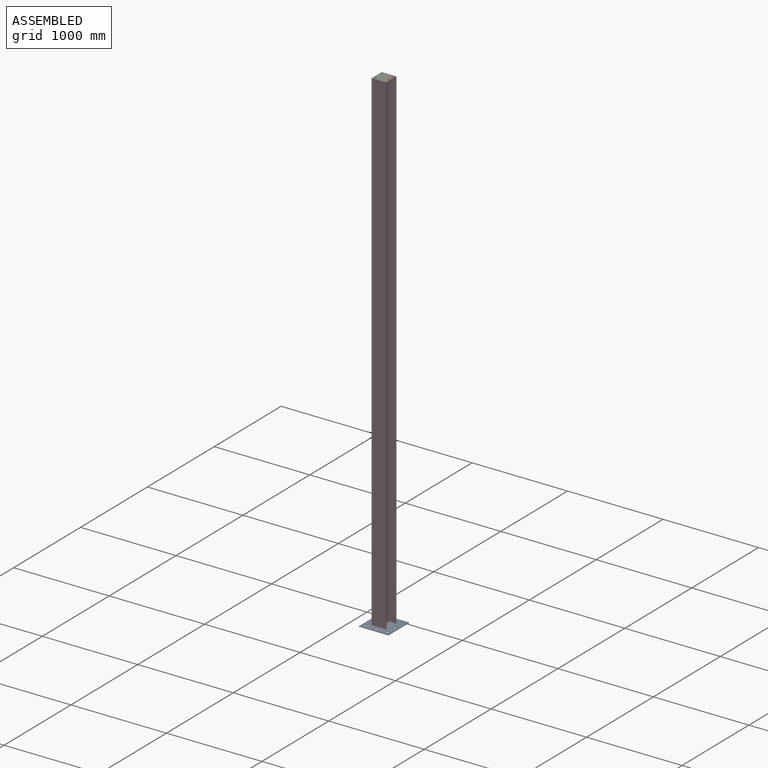
[diagram: assembled view]
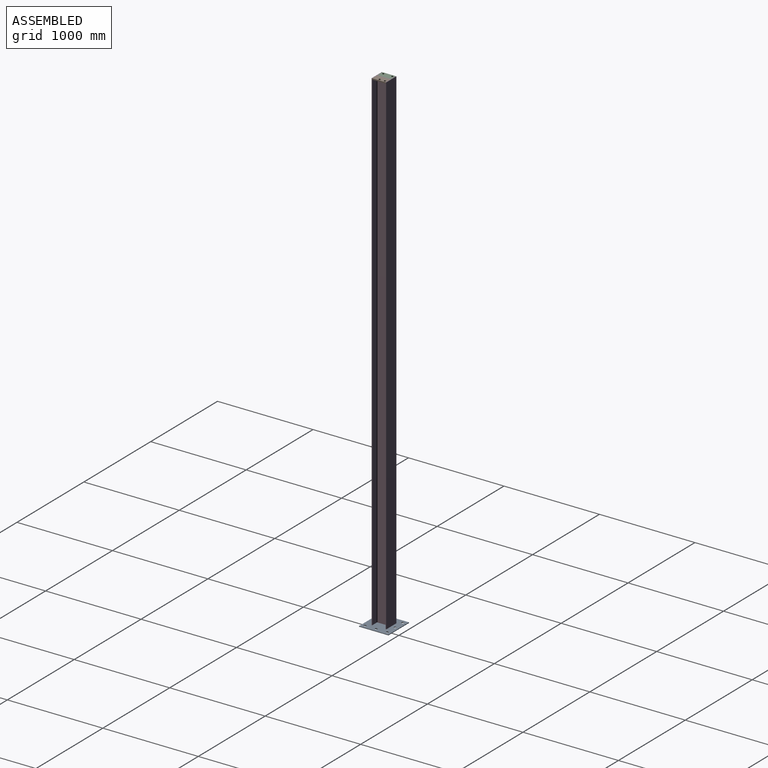
[diagram: assembled view, second angle]
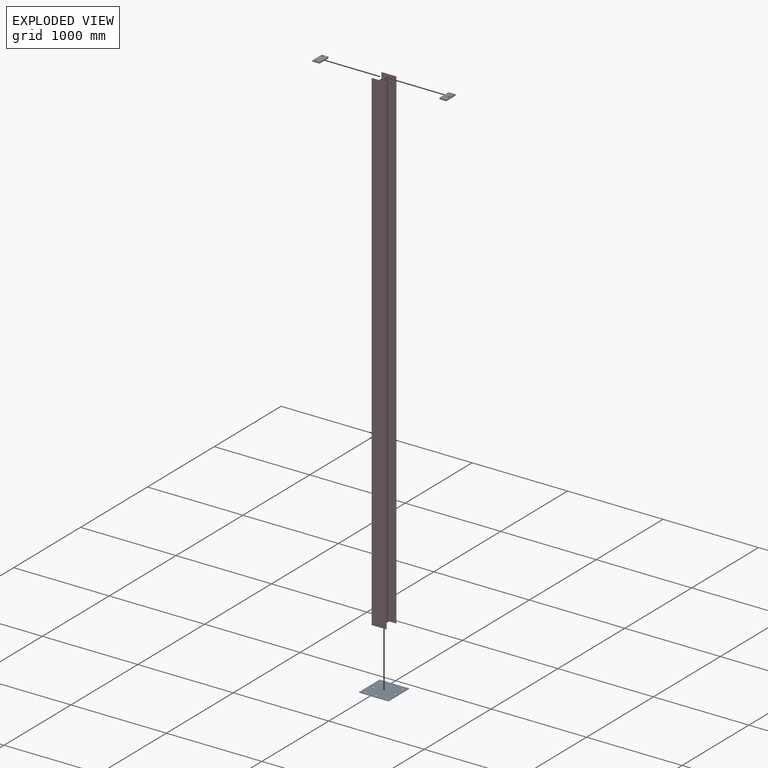
[diagram: exploded view]
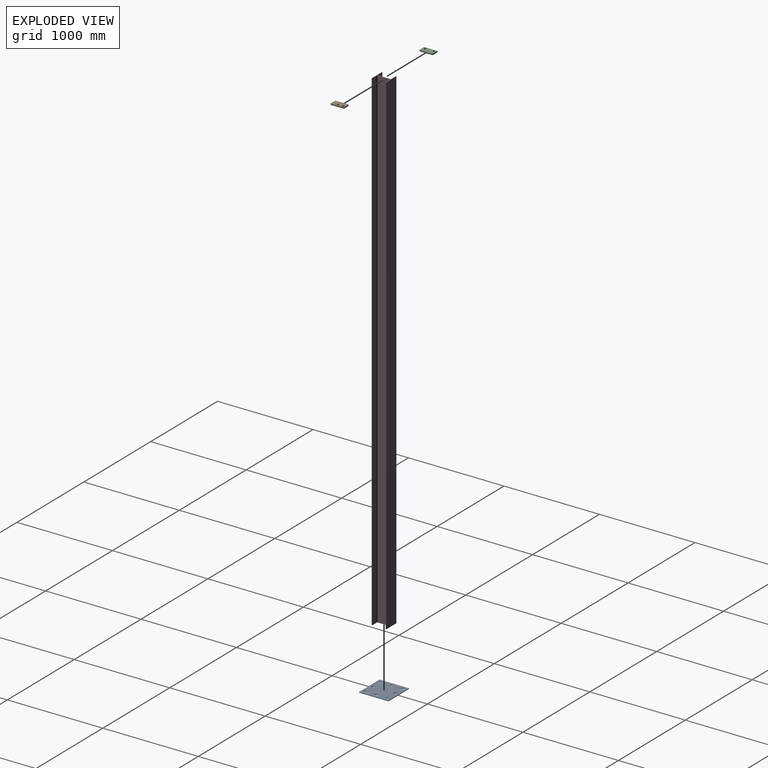
[diagram: exploded view, second angle]
ASSEMBLY  parts=4 mates=3
PART A: 14 faces, bbox 308.2x308.2x6.4 mm
  f0: plane 308.22x308.22mm, normal (0,0,1), area 90943.6mm2, adj f1,f3,f4,f5,f6,f7,f8,f9
  f1: plane 308.22x6.35mm, normal (-1,0,0), area 1957.2mm2, adj f0,f2,f3,f4
  f2: plane 308.22x308.22mm, normal (0,0,-1), area 90943.6mm2, adj f1,f3,f4,f5,f6,f7,f8,f9
  f3: plane 308.22x6.35mm, normal (0,-1,0), area 1957.2mm2, adj f0,f1,f2,f5
  f4: plane 308.22x6.35mm, normal (0,1,0), area 1957.2mm2, adj f0,f1,f2,f5
  f5: plane 308.22x6.35mm, normal (1,0,0), area 1957.2mm2, adj f0,f2,f3,f4
  f6: cylinder r=12.7mm len=25.4mm, axis (0,0,-1), area 506.7mm2, adj f0,f2
  f7: cylinder r=12.7mm len=25.4mm, axis (0,0,-1), area 506.7mm2, adj f0,f2
  f8: cylinder r=12.7mm len=25.4mm, axis (0,0,-1), area 506.7mm2, adj f0,f2
  f9: cylinder r=12.7mm len=25.4mm, axis (0,0,-1), area 506.7mm2, adj f0,f2
  f10: cylinder r=12.7mm len=25.4mm, axis (0,0,-1), area 506.7mm2, adj f0,f2
  f11: cylinder r=12.7mm len=25.4mm, axis (0,0,-1), area 506.7mm2, adj f0,f2
  f12: cylinder r=12.7mm len=25.4mm, axis (0,0,-1), area 506.7mm2, adj f0,f2
  f13: cylinder r=12.7mm len=25.4mm, axis (0,0,-1), area 506.7mm2, adj f0,f2
PART B: 10 faces, bbox 72.8x140.5x12.7 mm
  f0: cylinder r=6.35mm len=12.7mm, axis (0,0,-1), area 126.7mm2, adj f2,f3,f4,f7
  f1: cylinder r=6.35mm len=12.7mm, axis (0,0,-1), area 126.7mm2, adj f2,f3,f4,f6
  f2: plane 127.76x12.7mm, normal (-1,0,0), area 1622.6mm2, adj f0,f1,f3,f4
  f3: plane 140.46x72.77mm, normal (0,0,-1), area 9536.1mm2, adj f0,f1,f2,f5,f6,f7,f8,f9
  f4: plane 140.46x72.77mm, normal (0,0,1), area 9536.1mm2, adj f0,f1,f2,f5,f6,f7,f8,f9
  f5: plane 140.46x12.7mm, normal (1,0,0), area 1783.9mm2, adj f3,f4,f6,f7
  f6: plane 66.42x12.7mm, normal (0,1,0), area 843.6mm2, adj f1,f3,f4,f5
  f7: plane 66.42x12.7mm, normal (0,-1,0), area 843.6mm2, adj f0,f3,f4,f5
  f8: cylinder r=10.31mm len=20.63mm, axis (0,0,1), area 822.9mm2, adj f3,f4
  f9: cylinder r=10.31mm len=20.63mm, axis (0,0,1), area 822.9mm2, adj f3,f4
PART C: 10 faces, bbox 72.8x140.5x12.7 mm
  f0: cylinder r=6.35mm len=12.7mm, axis (0,0,-1), area 126.7mm2, adj f2,f3,f4,f7
  f1: cylinder r=6.35mm len=12.7mm, axis (0,0,-1), area 126.7mm2, adj f2,f3,f4,f6
  f2: plane 127.76x12.7mm, normal (1,0,0), area 1622.6mm2, adj f0,f1,f3,f4
  f3: plane 140.46x72.77mm, normal (0,0,-1), area 9536.1mm2, adj f0,f1,f2,f5,f6,f7,f8,f9
  f4: plane 140.46x72.77mm, normal (0,0,1), area 9536.1mm2, adj f0,f1,f2,f5,f6,f7,f8,f9
  f5: plane 140.46x12.7mm, normal (-1,0,0), area 1783.9mm2, adj f3,f4,f6,f7
  f6: plane 66.42x12.7mm, normal (0,1,0), area 843.6mm2, adj f1,f3,f4,f5
  f7: plane 66.42x12.7mm, normal (0,-1,0), area 843.6mm2, adj f0,f3,f4,f5
  f8: cylinder r=10.31mm len=20.63mm, axis (0,0,1), area 822.9mm2, adj f3,f4
  f9: cylinder r=10.31mm len=20.63mm, axis (0,0,1), area 822.9mm2, adj f3,f4
PART D: 18 faces, bbox 152.1x152.1x5177.5 mm
  f0: plane 152.15x152.15mm, normal (0,0,1), area 2739.9mm2, adj f2,f3,f4,f5,f6,f7,f8,f9
  f1: plane 152.15x152.15mm, normal (0,0,-1), area 2739.9mm2, adj f2,f3,f4,f5,f6,f7,f8,f9
  f2: cylinder r=6.35mm len=5177.54mm, axis (0,0,-1), area 51644.3mm2, adj f0,f1,f3,f17
  f3: plane 5177.54x127.76mm, normal (-1,0,0), area 661492.4mm2, adj f0,f1,f2,f4
  f4: cylinder r=6.35mm len=5177.54mm, axis (0,0,-1), area 51644.3mm2, adj f0,f1,f3,f5
  f5: plane 5177.54x66.42mm, normal (0,-1,0), area 343897.1mm2, adj f0,f1,f4,f6
  f6: plane 5177.54x5.84mm, normal (-1,0,0), area 30247.2mm2, adj f0,f1,f5,f7
  f7: plane 5177.54x152.15mm, normal (0,1,0), area 787741.4mm2, adj f0,f1,f6,f8
  f8: plane 5177.54x5.84mm, normal (1,0,0), area 30247.2mm2, adj f0,f1,f7,f9
  f9: plane 5177.54x66.42mm, normal (0,-1,0), area 343897.1mm2, adj f0,f1,f8,f10
  f10: cylinder r=6.35mm len=5177.54mm, axis (0,0,-1), area 51644.3mm2, adj f0,f1,f9,f11
  f11: plane 5177.54x127.76mm, normal (1,0,0), area 661492.4mm2, adj f0,f1,f10,f12
  f12: cylinder r=6.35mm len=5177.54mm, axis (0,0,-1), area 51644.3mm2, adj f0,f1,f11,f13
  f13: plane 5177.54x66.42mm, normal (0,1,0), area 343897.1mm2, adj f0,f1,f12,f14
  f14: plane 5177.54x5.84mm, normal (1,0,0), area 30247.2mm2, adj f0,f1,f13,f15
  f15: plane 5177.54x152.15mm, normal (0,-1,0), area 787741.4mm2, adj f0,f1,f14,f16
  f16: plane 5177.54x5.84mm, normal (-1,0,0), area 30247.2mm2, adj f0,f1,f15,f17
  f17: plane 5177.54x66.42mm, normal (0,1,0), area 343897.1mm2, adj f0,f1,f2,f16
PLACE A t=(-2586.95,-5601.78,2965.38)mm
PLACE B rot(axis=(1,0,0),180deg) t=(0,-4724.65,-12.7)mm
PLACE C rot(axis=(1,0,0),180deg) t=(0,-4724.65,-12.7)mm
PLACE D at identity fixed
MATE fastened A.f0 <-> D.f1  axis (0,0,1) through (-5867.53,-2362.33,-5177.54)mm
MATE fastened B.f2 <-> D.f11  axis (-1,0,0) through (-5864.23,-2362.33,0)mm
MATE fastened C.f2 <-> D.f3  axis (1,0,0) through (-5870.83,-2362.33,0)mm
